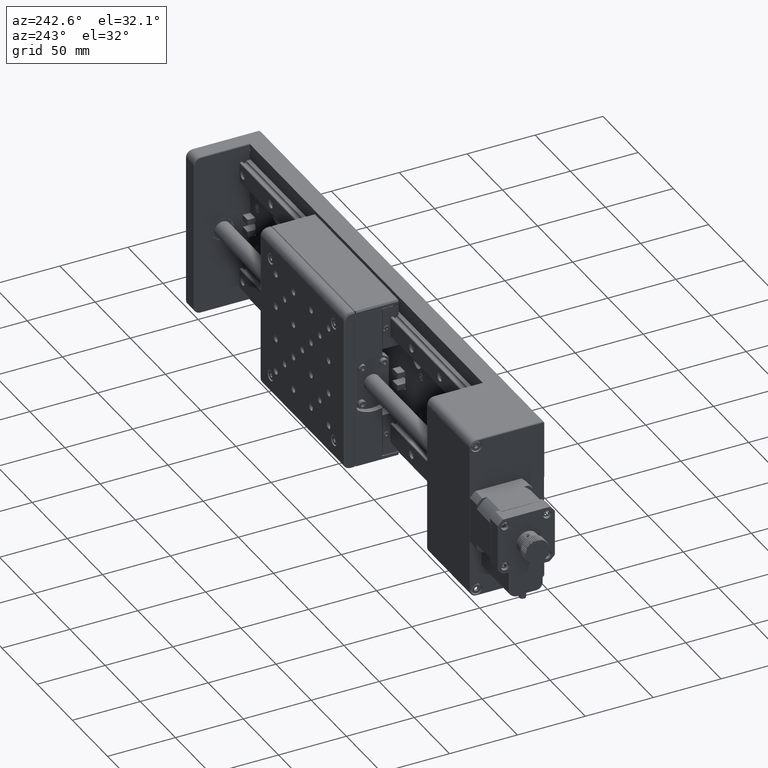
[diagram: clean part render]
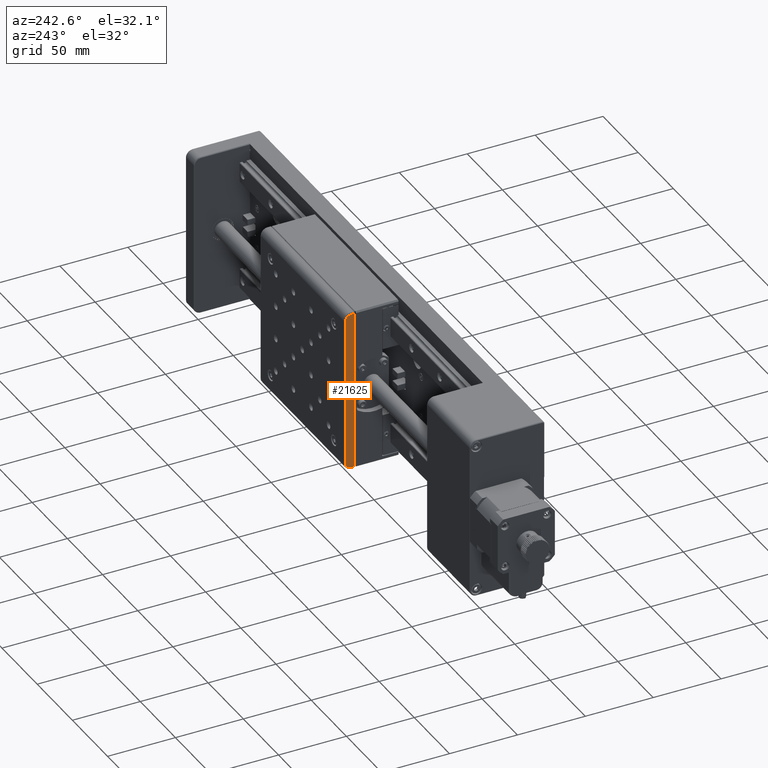
[diagram: same view with one face highlighted and labeled with its STEP entity id]
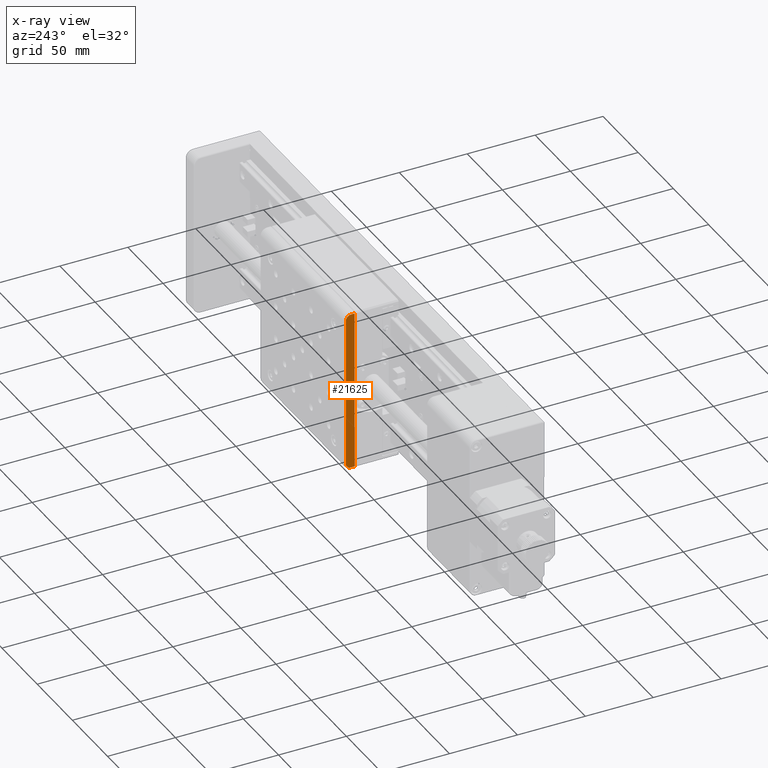
[diagram: x-ray of the same camera — body ghosted, the highlighted face saturated]
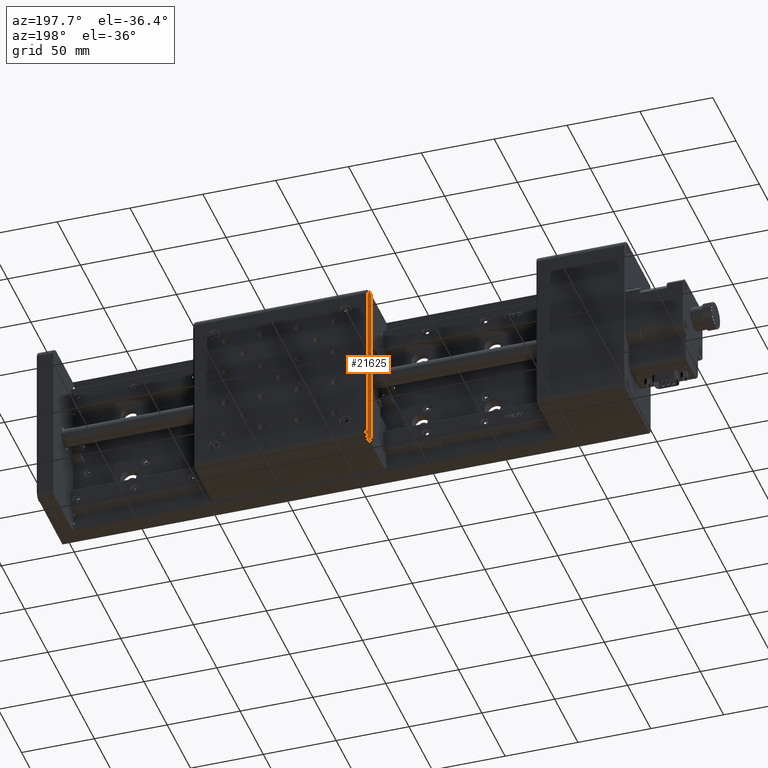
[diagram: same view with one face highlighted and labeled with its STEP entity id]
A machine part, auxiliary view. The second image highlights one B-rep face of the part: STEP entity #21625.
The next image is the same camera in x-ray: the body ghosted, the highlighted face saturated — about 0% of this face is hidden behind the body in this view.
A second angle (auxiliary view) of the same face is appended — the face is thin or edge-on in the first view.
In plain terms, the highlighted planar face has unit normal (1, 0, -0).
Its self-contained STEP definition (entity closure, byte-faithful):
#675 = CIRCLE ( 'NONE', #12003, 4.000000000000003600 ) ;
#2359 = LINE ( 'NONE', #50046, #17686 ) ;
#3966 = VERTEX_POINT ( 'NONE', #32481 ) ;
#4792 = VERTEX_POINT ( 'NONE', #27524 ) ;
#6020 = AXIS2_PLACEMENT_3D ( 'NONE', #11858, #46910, #27319 ) ;
#8105 = CARTESIAN_POINT ( 'NONE',  ( -1019.231237573338800, 56.00000000000601800, -408.9134800466773100 ) ) ;
#8200 = ORIENTED_EDGE ( 'NONE', *, *, #27047, .T. ) ;
#9003 = EDGE_CURVE ( 'NONE', #12879, #13574, #32545, .T. ) ;
#9269 = DIRECTION ( 'NONE',  ( 0.0000000000000000000, -1.000000000000000000, 0.0000000000000000000 ) ) ;
#9980 = AXIS2_PLACEMENT_3D ( 'NONE', #42617, #42965, #50496 ) ;
#11246 = VERTEX_POINT ( 'NONE', #18902 ) ;
#11584 = CARTESIAN_POINT ( 'NONE',  ( -1019.231237573338800, 55.00000000000614600, -294.9134800466773100 ) ) ;
#11593 = CARTESIAN_POINT ( 'NONE',  ( -1019.231237573338800, 48.50000000000613900, -289.9134800466773100 ) ) ;
#11858 = CARTESIAN_POINT ( 'NONE',  ( -1019.231237573338800, 51.00000000000613900, -294.9134800466773100 ) ) ;
#12003 = AXIS2_PLACEMENT_3D ( 'NONE', #13239, #41245, #9269 ) ;
#12582 = CARTESIAN_POINT ( 'NONE',  ( -1019.231237573338800, 48.50000000000601800, -408.9134800466773100 ) ) ;
#12879 = VERTEX_POINT ( 'NONE', #12582 ) ;
#13239 = CARTESIAN_POINT ( 'NONE',  ( -1019.231237573338800, 51.00000000000602500, -404.9134800466773100 ) ) ;
#13574 = VERTEX_POINT ( 'NONE', #24784 ) ;
#15254 = CIRCLE ( 'NONE', #6020, 4.000000000000003600 ) ;
#16720 = LINE ( 'NONE', #8105, #48090 ) ;
#16932 = ORIENTED_EDGE ( 'NONE', *, *, #48833, .T. ) ;
#17302 = ORIENTED_EDGE ( 'NONE', *, *, #37293, .T. ) ;
#17686 = VECTOR ( 'NONE', #49727, 1000.000000000000000 ) ;
#18902 = CARTESIAN_POINT ( 'NONE',  ( -1019.231237573338800, 51.00000000000614600, -290.9134800466773100 ) ) ;
#20261 = VECTOR ( 'NONE', #23104, 1000.000000000000000 ) ;
#21625 = ADVANCED_FACE ( 'NONE', ( #32666 ), #45902, .F. ) ;
#23104 = DIRECTION ( 'NONE',  ( 1.665334536937734800E-016, 1.054711873393895800E-015, 1.000000000000000000 ) ) ;
#23753 = DIRECTION ( 'NONE',  ( 4.387762434446928700E-016, -1.000000000000000000, 1.054711873393895800E-015 ) ) ;
#24044 = EDGE_CURVE ( 'NONE', #3966, #4792, #675, .T. ) ;
#24784 = CARTESIAN_POINT ( 'NONE',  ( -1019.231237573338800, 48.50000000000613900, -290.9134800466773100 ) ) ;
#27047 = EDGE_CURVE ( 'NONE', #34634, #3966, #2359, .T. ) ;
#27319 = DIRECTION ( 'NONE',  ( 0.0000000000000000000, -1.000000000000000000, 0.0000000000000000000 ) ) ;
#27524 = CARTESIAN_POINT ( 'NONE',  ( -1019.231237573338800, 51.00000000000601800, -408.9134800466773100 ) ) ;
#28944 = EDGE_CURVE ( 'NONE', #13574, #11246, #29914, .T. ) ;
#29914 = LINE ( 'NONE', #39231, #49621 ) ;
#32481 = CARTESIAN_POINT ( 'NONE',  ( -1019.231237573338800, 55.00000000000603300, -404.9134800466773100 ) ) ;
#32545 = LINE ( 'NONE', #11593, #20261 ) ;
#32666 = FACE_OUTER_BOUND ( 'NONE', #38875, .T. ) ;
#34634 = VERTEX_POINT ( 'NONE', #11584 ) ;
#37293 = EDGE_CURVE ( 'NONE', #4792, #12879, #16720, .T. ) ;
#38875 = EDGE_LOOP ( 'NONE', ( #46142, #42174, #16932, #8200, #50441, #17302 ) ) ;
#39231 = CARTESIAN_POINT ( 'NONE',  ( -1019.231237573338800, 56.00000000000613900, -290.9134800466773100 ) ) ;
#41245 = DIRECTION ( 'NONE',  ( -1.000000000000000000, -4.387762434446926700E-016, 1.665334536937739500E-016 ) ) ;
#42174 = ORIENTED_EDGE ( 'NONE', *, *, #28944, .T. ) ;
#42617 = CARTESIAN_POINT ( 'NONE',  ( -1019.231237573338800, 56.00000000000613900, -289.9134800466773100 ) ) ;
#42965 = DIRECTION ( 'NONE',  ( 1.000000000000000000, 4.387762434446926700E-016, -1.665334536937739500E-016 ) ) ;
#43177 = DIRECTION ( 'NONE',  ( -4.387762434446928700E-016, 1.000000000000000000, -1.054711873393895800E-015 ) ) ;
#45902 = PLANE ( 'NONE',  #9980 ) ;
#46142 = ORIENTED_EDGE ( 'NONE', *, *, #9003, .T. ) ;
#46910 = DIRECTION ( 'NONE',  ( -1.000000000000000000, -4.387762434446926700E-016, 1.665334536937739500E-016 ) ) ;
#48090 = VECTOR ( 'NONE', #23753, 1000.000000000000000 ) ;
#48833 = EDGE_CURVE ( 'NONE', #11246, #34634, #15254, .T. ) ;
#49621 = VECTOR ( 'NONE', #43177, 1000.000000000000000 ) ;
#49727 = DIRECTION ( 'NONE',  ( -1.665334536937734800E-016, -1.054711873393895800E-015, -1.000000000000000000 ) ) ;
#50046 = CARTESIAN_POINT ( 'NONE',  ( -1019.231237573338800, 55.00000000000614600, -289.9134800466773100 ) ) ;
#50441 = ORIENTED_EDGE ( 'NONE', *, *, #24044, .T. ) ;
#50496 = DIRECTION ( 'NONE',  ( 4.387762434446928700E-016, -1.000000000000000000, 1.054711873393895800E-015 ) ) ;